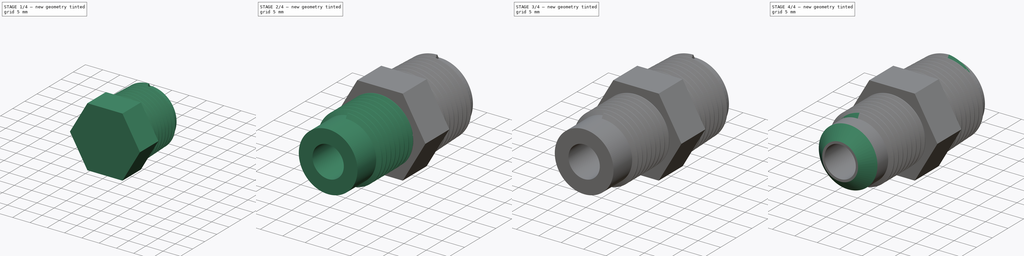
[diagram: build sequence overview — one tinted view per stage of 4, left to right]
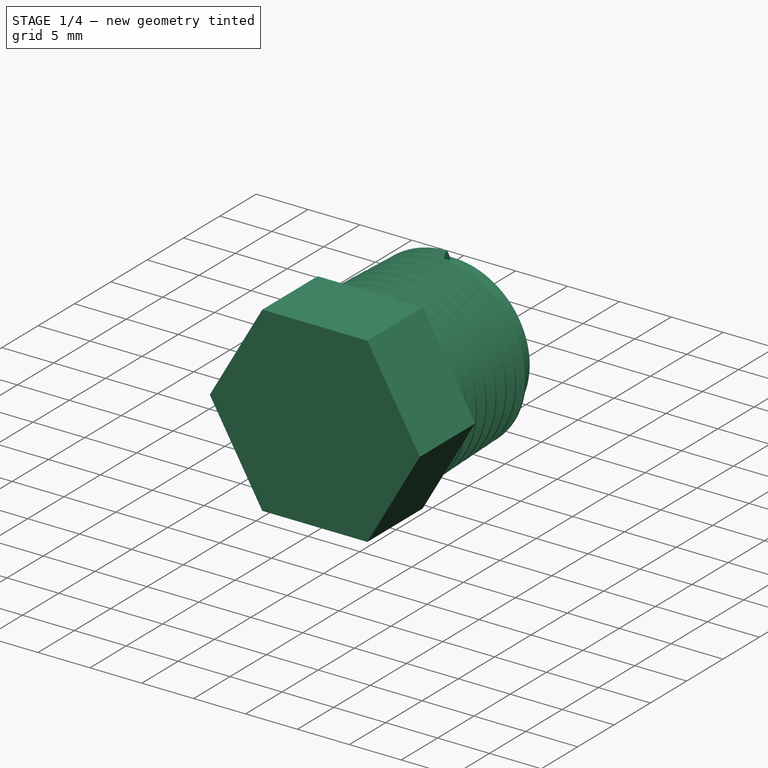
[diagram: stage 1 of 4 — iso view after this stage's code; geometry added in this stage tinted green]
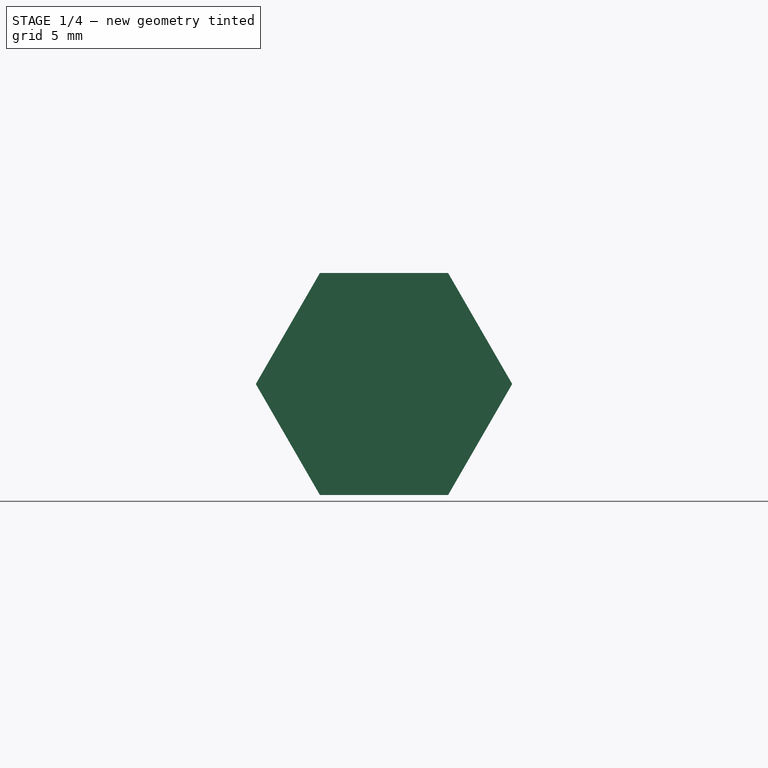
[diagram: stage 1 of 4 — front view after this stage's code; geometry added in this stage tinted green]
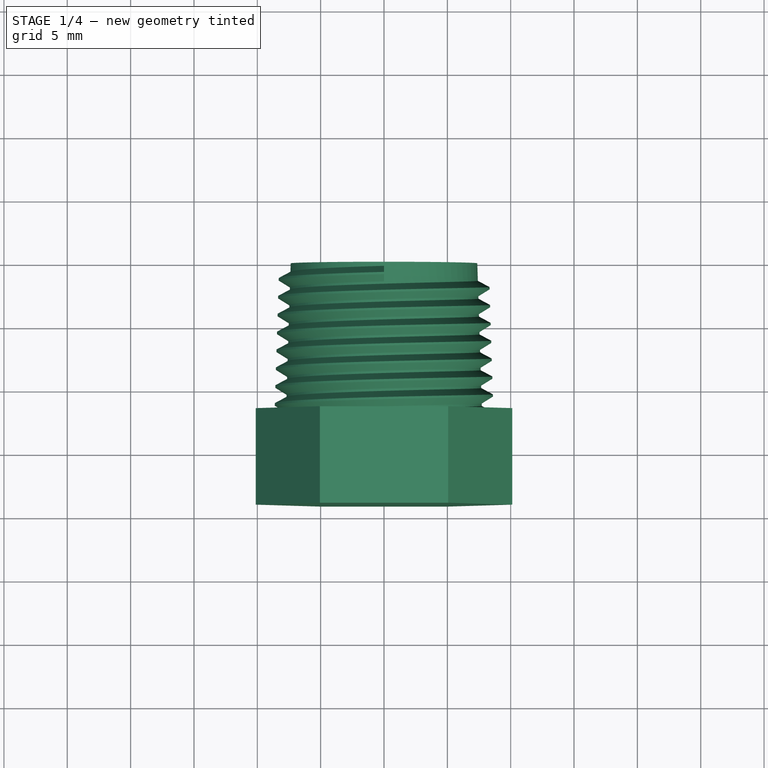
[diagram: stage 1 of 4 — top view after this stage's code; geometry added in this stage tinted green]
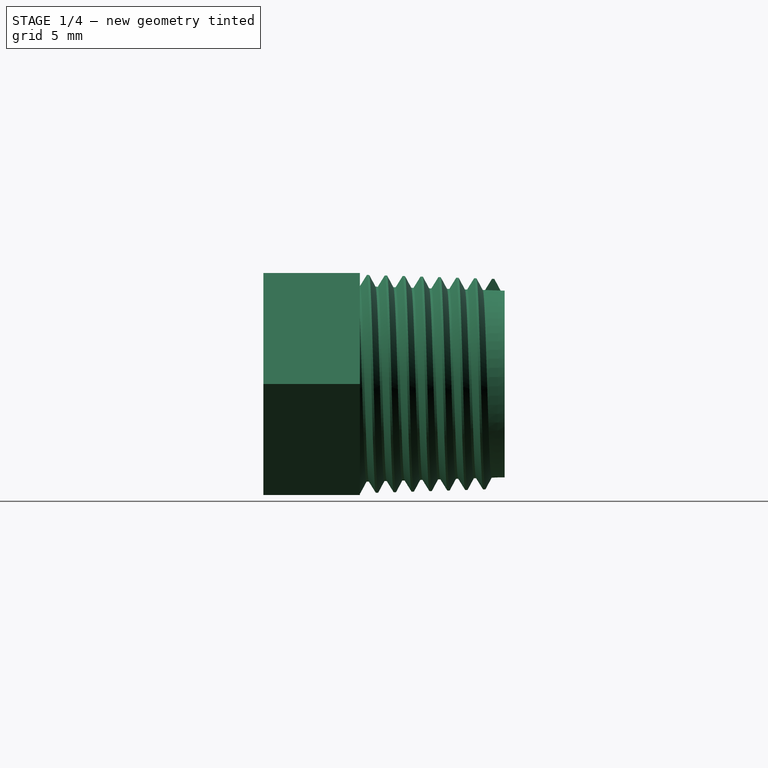
[diagram: stage 1 of 4 — right view after this stage's code; geometry added in this stage tinted green]
FCSTD DOCUMENT  (FreeCAD 0.20RUnknown)
Label: flared-fittings
License: All rights reserved
LicenseURL: http://en.wikipedia.org/wiki/All_rights_reserved
objects: Sketcher::SketchObject×7, PartDesign::AdditiveHelix×4, PartDesign::Pad×2, PartDesign::Pocket×2, PartDesign::Chamfer×2, PartDesign::Revolution×1, PartDesign::Body×1, App::Part×1
note: 30 computed .brp shape members not serialized (recipe doc carries the construction recipe); baked Part::Feature solids carry a one-line shape summary decoded from their .brp

FEATURE [Sketcher::SketchObject] Sketch081
  FullyConstrained = true
  MapMode = 5
  Placement = pos=(0,0,0) rot=(0.57735,0.57735,0.57735;2.0944rad)
  Support = -> [YZ_Plane035]
  sketch-geometry (4):
    g0: LineSegment StartX=0 StartY=7.366 StartZ=0 EndX=-11.43 EndY=7.72319 EndZ=0
    g1: LineSegment StartX=0 StartY=7.366 StartZ=0 EndX=0 EndY=0 EndZ=0
    g2: LineSegment StartX=0 StartY=0 StartZ=0 EndX=-11.43 EndY=0 EndZ=0
    g3: LineSegment StartX=-11.43 StartY=0 StartZ=0 EndX=-11.43 EndY=7.72319 EndZ=0
  constraints (12):
    c: PointOnObject(g0,g-2)
    c: Coincident(g1,g0)
    c: PointOnObject(g1,g-2)
    c: Coincident(g2,g1)
    c: Horizontal(g2)
    c: Coincident(g3,g2)
    c: Coincident(g3,g0)
    c: Vertical(g3)
    c: DistanceY(g-1,g1) = 0
    c: DistanceY(g-1,g0) = 7.366
    c: Angle(g0,g-1) = 0.0312396
    c: DistanceX(g2,g2) = 11.43
FEATURE [PartDesign::Revolution] Revolution003
  Angle = 360
  Axis = (3e-16,1,-2e-16)
  Base = (0,0,0)
  Placement = pos=(0,0,0) rot=(0.57735,0.57735,0.57735;2.0944rad)
  Profile = -> Sketch081
  ReferenceAxis = -> Sketch081 [H_Axis]
FEATURE [Sketcher::SketchObject] Sketch082
  FullyConstrained = true
  MapMode = 5
  Placement = pos=(0,0,0) rot=(0.57735,0.57735,0.57735;2.0944rad)
  Support = -> [YZ_Plane035]
  sketch-geometry (4):
    g0: LineSegment StartX=-1.55162 StartY=7.40431 StartZ=0 EndX=-0.994084 EndY=8.30388 EndZ=0
    g1: LineSegment StartX=-0.994084 StartY=8.30388 StartZ=0 EndX=-0.817781 EndY=8.29837 EndZ=0
    g2: LineSegment StartX=-0.817781 StartY=8.29837 StartZ=0 EndX=-0.3175 EndY=7.36575 EndZ=0
    g3: LineSegment StartX=-0.3175 StartY=7.36575 StartZ=0 EndX=-1.55162 EndY=7.40431 EndZ=0
  constraints (12):
    c: Coincident(g1,g0)
    c: Coincident(g2,g1)
    c: Coincident(g3,g2)
    c: Coincident(g3,g0)
    c: Angle(g0,g2) = 1.0472
    c: Parallel(g3,g1)
    c: Angle(g3,g-1) = 0.0312396
    c: Equal(g0,g2)
    c: Distance(g1) = 0.176389
    c: DistanceY(g-1,g2) = 7.36575
    c: Distance(g0,g1) = 0.916545
    c: DistanceX(g2,g-1) = 0.3175
FEATURE [PartDesign::AdditiveHelix] AdditiveHelix003
  Angle = 1.7899
  Axis = (3e-16,1,-2e-16)
  Base = (0,0,0)
  BaseFeature = -> Revolution003
  Growth = 0.0440969
  HasBeenEdited = true
  Height = 12.7
  LeftHanded = false
  Mode = 0
  Outside = false
  Pitch = 1.41111
  Placement = pos=(0,0,0) rot=(0.57735,0.57735,0.57735;2.0944rad)
  Profile = -> Sketch082
  ReferenceAxis = -> Sketch082 [H_Axis]
  Reversed = true
  Turns = 9.00001
FEATURE [Sketcher::SketchObject] Sketch083
  AttachmentOffset = pos=(0,0,11.43) rot=(0,0,1;0rad)
  FullyConstrained = true
  MapMode = 5
  Placement = pos=(0,-11.43,-2.5e-15) rot=(1,0,0;1.5708rad)
  Support = -> [XZ_Plane035]
  sketch-geometry (7):
    g0: LineSegment StartX=10.1186 StartY=0 StartZ=0 EndX=5.05932 EndY=8.763 EndZ=0
    g1: LineSegment StartX=5.05932 StartY=8.763 StartZ=0 EndX=-5.05932 EndY=8.763 EndZ=0
    g2: LineSegment StartX=-5.05932 StartY=8.763 StartZ=0 EndX=-10.1186 EndY=1.3145e-12 EndZ=0
    g3: LineSegment StartX=-10.1186 StartY=1.3145e-12 StartZ=0 EndX=-5.05932 EndY=-8.763 EndZ=0
    g4: LineSegment StartX=-5.05932 StartY=-8.763 StartZ=0 EndX=5.05932 EndY=-8.763 EndZ=0
    g5: LineSegment StartX=5.05932 StartY=-8.763 StartZ=0 EndX=10.1186 EndY=0 EndZ=0
    g6: Circle CenterX=0 CenterY=0 CenterZ=0 NormalX=0 NormalY=0 NormalZ=1 AngleXU=0 Radius=10.1186
  constraints (16):
    c: Coincident(g0,g1)
    c: Coincident(g1,g2)
    c: Coincident(g2,g3)
    c: Coincident(g3,g4)
    c: Coincident(g4,g5)
    c: Coincident(g5,g0)
    c: Equal(g0, g1-g5) x5
    c: PointOnObject(g0,g6)
    c: PointOnObject(g1,g6)
    c: PointOnObject(g2,g6)
    c: PointOnObject(g3,g6)
    c: PointOnObject(g4,g6)
    c: PointOnObject(g5,g6)
    c: Coincident(g6,g-1)
    c: PointOnObject(g5,g-1)
    c: Distance(g3,g0) = 17.526
FEATURE [PartDesign::Pad] Pad027
  BaseFeature = -> AdditiveHelix003
  Direction = (0,-1,-2e-16)
  Length = 7.62
  Length2 = 10
  Placement = pos=(0,0,0) rot=(0.57735,0.57735,0.57735;2.0944rad)
  Profile = -> Sketch083
  ReferenceAxis = -> Sketch083 [N_Axis]
  Type = 0
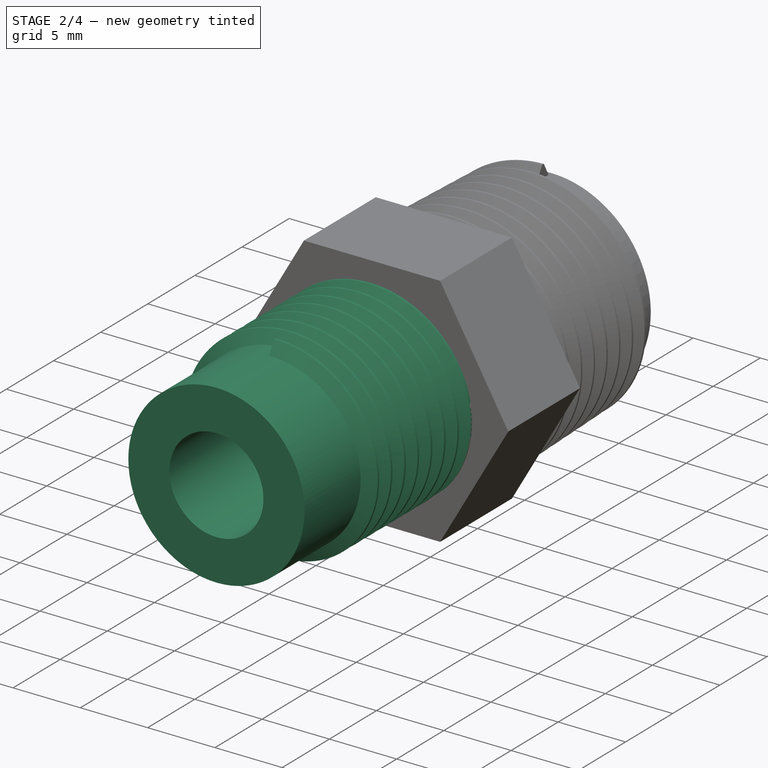
[diagram: stage 2 of 4 — iso view after this stage's code; geometry added in this stage tinted green]
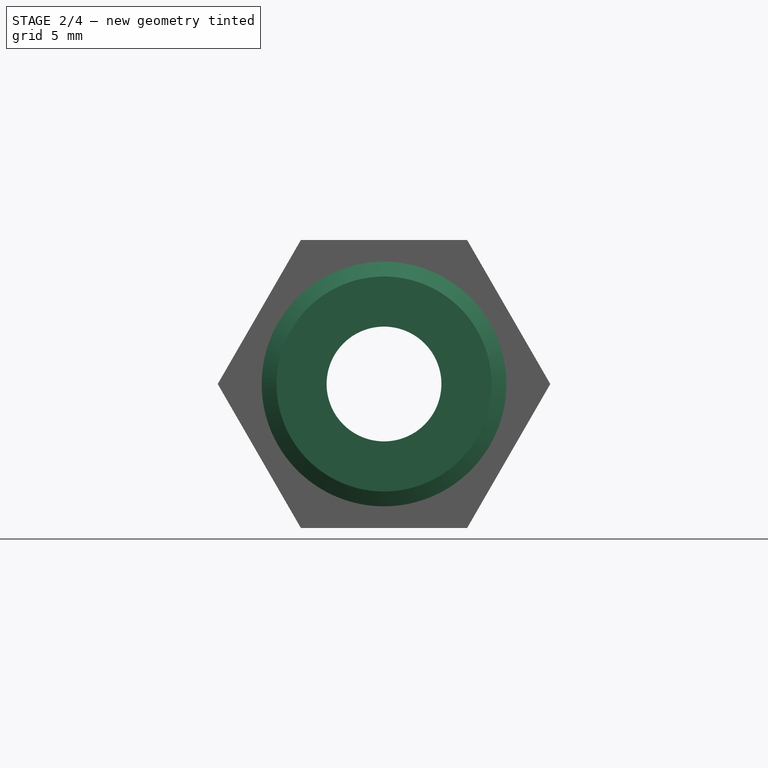
[diagram: stage 2 of 4 — front view after this stage's code; geometry added in this stage tinted green]
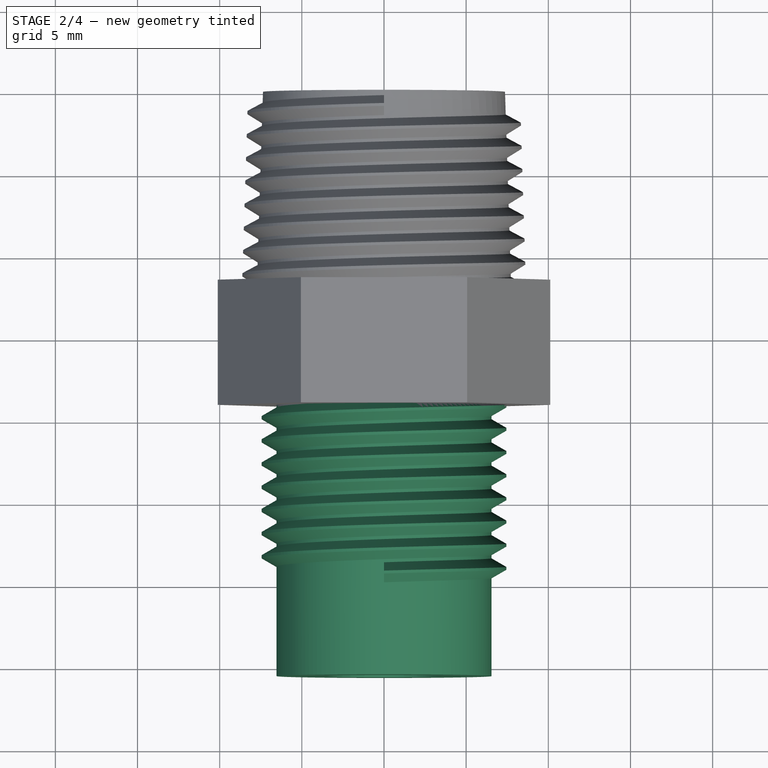
[diagram: stage 2 of 4 — top view after this stage's code; geometry added in this stage tinted green]
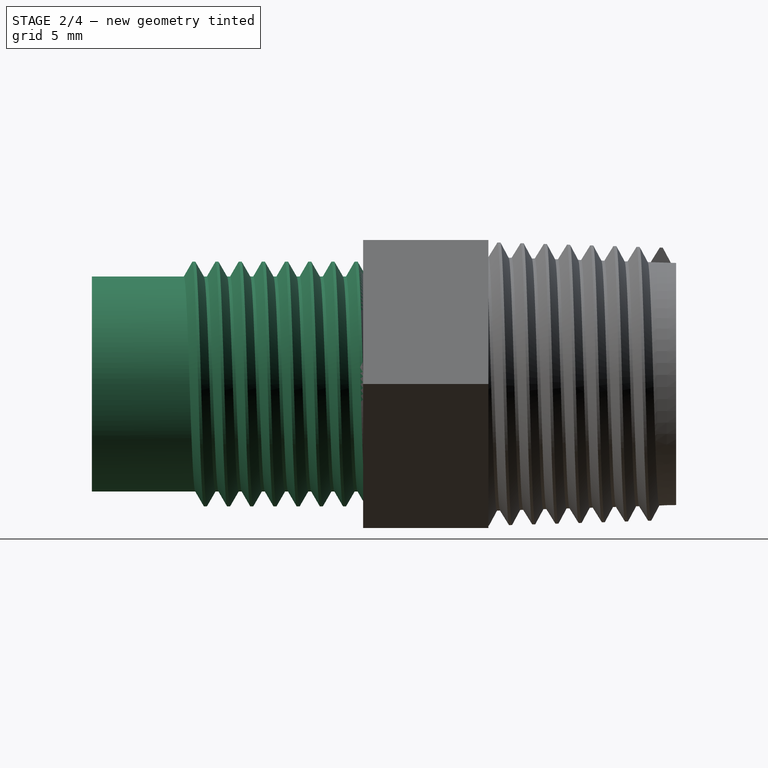
[diagram: stage 2 of 4 — right view after this stage's code; geometry added in this stage tinted green]
FEATURE [Sketcher::SketchObject] Sketch084
  AttachmentOffset = pos=(0,0,19.05) rot=(0,0,1;0rad)
  FullyConstrained = true
  MapMode = 5
  Placement = pos=(0,-19.05,-4.2e-15) rot=(1,0,0;1.5708rad)
  Support = -> [XZ_Plane035]
  sketch-geometry (1):
    g0: Circle CenterX=0 CenterY=0 CenterZ=0 NormalX=0 NormalY=0 NormalZ=1 AngleXU=0 Radius=6.5405
  constraints (2):
    c: Coincident(g0,g-1)
    c: Diameter(g0) = 13.081
FEATURE [PartDesign::Pad] Pad028
  BaseFeature = -> Pad027
  Direction = (0,-1,-2e-16)
  Length = 16.51
  Length2 = 10
  Placement = pos=(0,0,0) rot=(0.57735,0.57735,0.57735;2.0944rad)
  Profile = -> Sketch084
  ReferenceAxis = -> Sketch084 [N_Axis]
  Type = 0
FEATURE [Sketcher::SketchObject] Sketch085
  FullyConstrained = true
  MapMode = 5
  Placement = pos=(0,0,0) rot=(0.57735,0.57735,0.57735;2.0944rad)
  Support = -> [YZ_Plane035]
  sketch-geometry (4):
    g0: LineSegment StartX=-29.972 StartY=6.5278 StartZ=0 EndX=-29.4428 EndY=7.44435 EndZ=0
    g1: LineSegment StartX=-29.4428 StartY=7.44435 StartZ=0 EndX=-29.2664 EndY=7.44435 EndZ=0
    g2: LineSegment StartX=-29.2664 StartY=7.44435 StartZ=0 EndX=-28.7373 EndY=6.5278 EndZ=0
    g3: LineSegment StartX=-28.7373 StartY=6.5278 StartZ=0 EndX=-29.972 EndY=6.5278 EndZ=0
  constraints (12):
    c: Coincident(g1,g0)
    c: Horizontal(g1)
    c: Coincident(g2,g1)
    c: Coincident(g3,g2)
    c: Coincident(g3,g0)
    c: Horizontal(g3)
    c: Equal(g2,g0)
    c: Angle(g0,g2) = 1.0472
    c: DistanceX(g1,g1) = 0.176389
    c: DistanceY(g0,g0) = 0.916545
    c: DistanceX(g0,g-1) = 29.972
    c: DistanceY(g-1,g2) = 6.5278
FEATURE [PartDesign::AdditiveHelix] AdditiveHelix004
  Angle = 0
  Axis = (3e-16,1,-2e-16)
  Base = (0,0,0)
  BaseFeature = -> Pad028
  Growth = 0
  HasBeenEdited = true
  Height = 12.7
  LeftHanded = false
  Mode = 0
  Outside = false
  Pitch = 1.41111
  Placement = pos=(0,0,0) rot=(0.57735,0.57735,0.57735;2.0944rad)
  Profile = -> Sketch085
  ReferenceAxis = -> Sketch085 [H_Axis]
  Turns = 9.00001
FEATURE [Sketcher::SketchObject] Sketch086
  FullyConstrained = true
  MapMode = 5
  Placement = pos=(0,-35.56,0) rot=(0.57735,0.57735,-0.57735;2.0944rad)
  Support = -> [AdditiveHelix004]
  sketch-geometry (1):
    g0: Circle CenterX=0 CenterY=0 CenterZ=0 NormalX=0 NormalY=0 NormalZ=1 AngleXU=0 Radius=3.4925
  constraints (2):
    c: Coincident(g0,g-1)
    c: Diameter(g0) = 6.985
FEATURE [PartDesign::Pocket] Pocket015
  BaseFeature = -> AdditiveHelix004
  Direction = (1e-16,1,-6e-16)
  Length = 5
  Length2 = 5
  Placement = pos=(0,0,0) rot=(0.57735,0.57735,0.57735;2.0944rad)
  Profile = -> Sketch086
  ReferenceAxis = -> Sketch086 [N_Axis]
  Type = 1
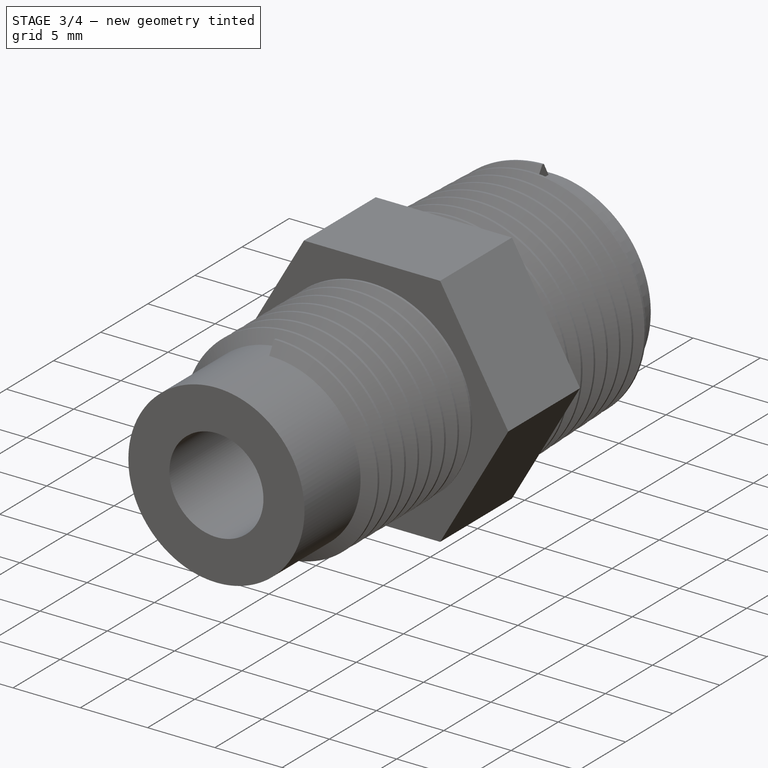
[diagram: stage 3 of 4 — iso view after this stage's code; geometry added in this stage tinted green]
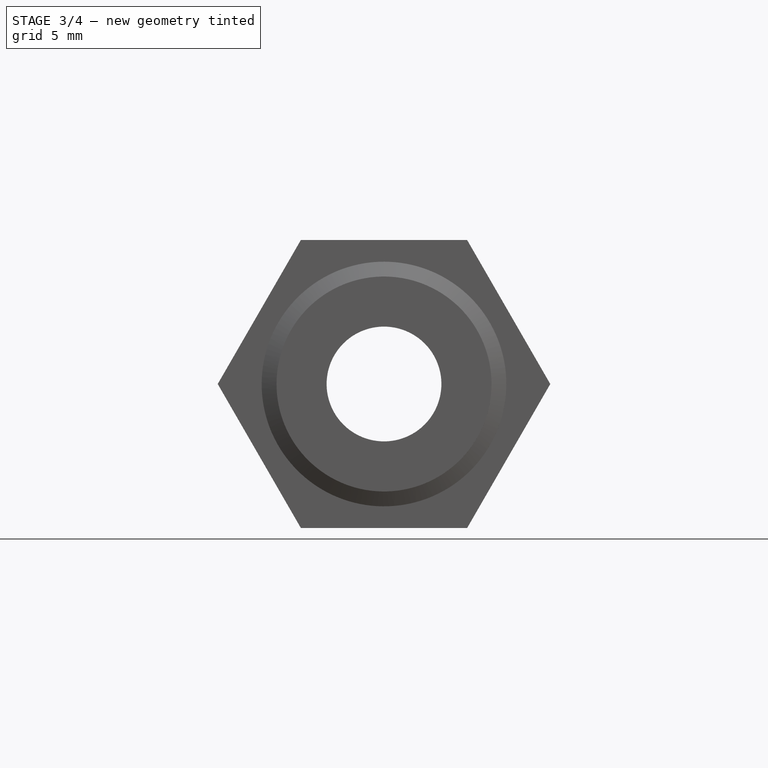
[diagram: stage 3 of 4 — front view after this stage's code; geometry added in this stage tinted green]
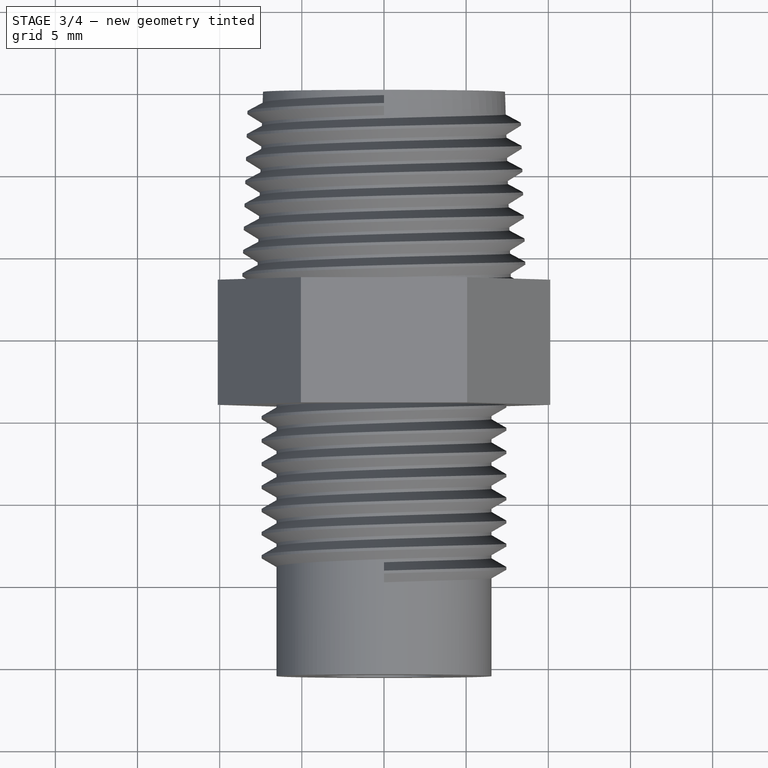
[diagram: stage 3 of 4 — top view after this stage's code; geometry added in this stage tinted green]
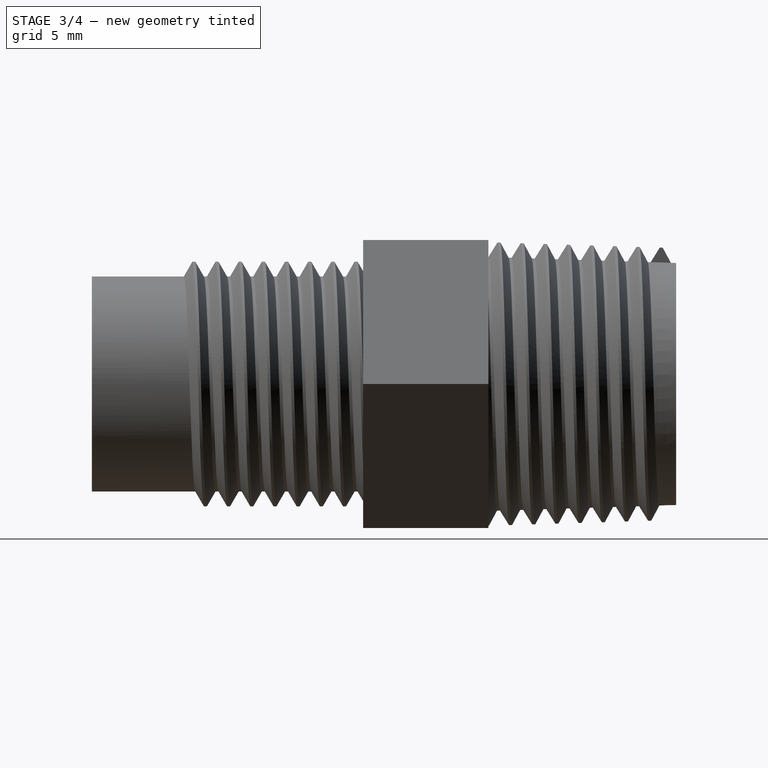
[diagram: stage 3 of 4 — right view after this stage's code; geometry added in this stage tinted green]
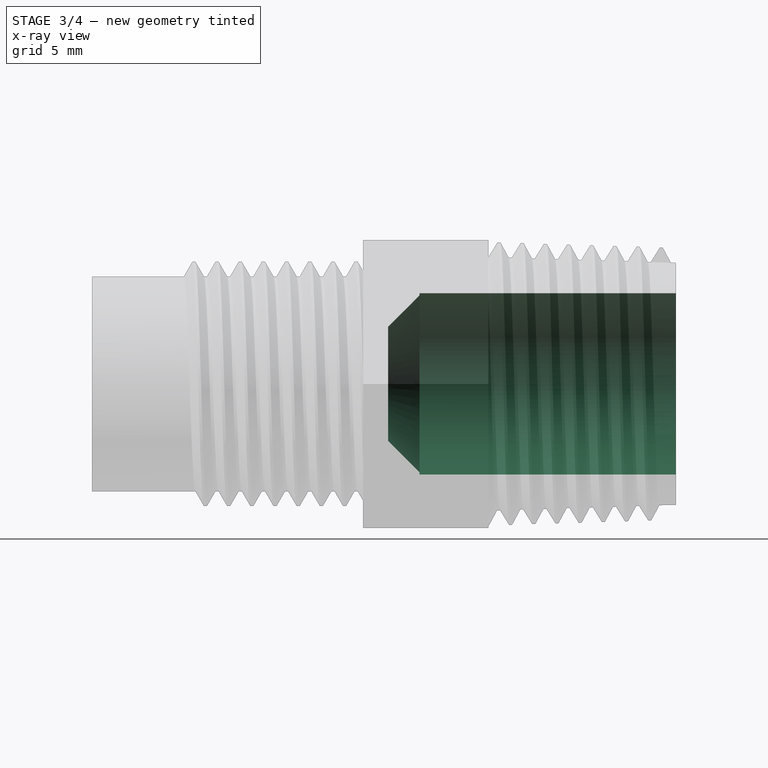
[diagram: stage 3 of 4 — x-ray composite at the right view; earlier geometry ghosted, this stage's added geometry solid]
FEATURE [Sketcher::SketchObject] Sketch087
  FullyConstrained = true
  MapMode = 5
  Placement = pos=(0,-1.6e-15,0) rot=(0.57735,0.57735,0.57735;4.18879rad)
  Support = -> [Pocket015]
  sketch-geometry (1):
    g0: Circle CenterX=0 CenterY=0 CenterZ=0 NormalX=0 NormalY=0 NormalZ=1 AngleXU=0 Radius=5.5245
  constraints (2):
    c: Coincident(g0,g-1)
    c: Diameter(g0) = 11.049
FEATURE [PartDesign::Pocket] Pocket016
  BaseFeature = -> Pocket015
  Direction = (-3e-16,-1,2.1e-15)
  Length = 15.621
  Length2 = 5
  Placement = pos=(0,0,0) rot=(0.57735,0.57735,0.57735;2.0944rad)
  Profile = -> Sketch087
  ReferenceAxis = -> Sketch087 [N_Axis]
  Type = 0
FEATURE [PartDesign::Chamfer] Chamfer001
  Angle = 45
  Base = -> Pocket016 [Edge33]
  BaseFeature = -> Pocket016
  ChamferType = 0
  FlipDirection = false
  Placement = pos=(0,0,0) rot=(0.57735,0.57735,0.57735;2.0944rad)
  Size = 1.905
  Size2 = 1
  SupportTransform = false
  UseAllEdges = false
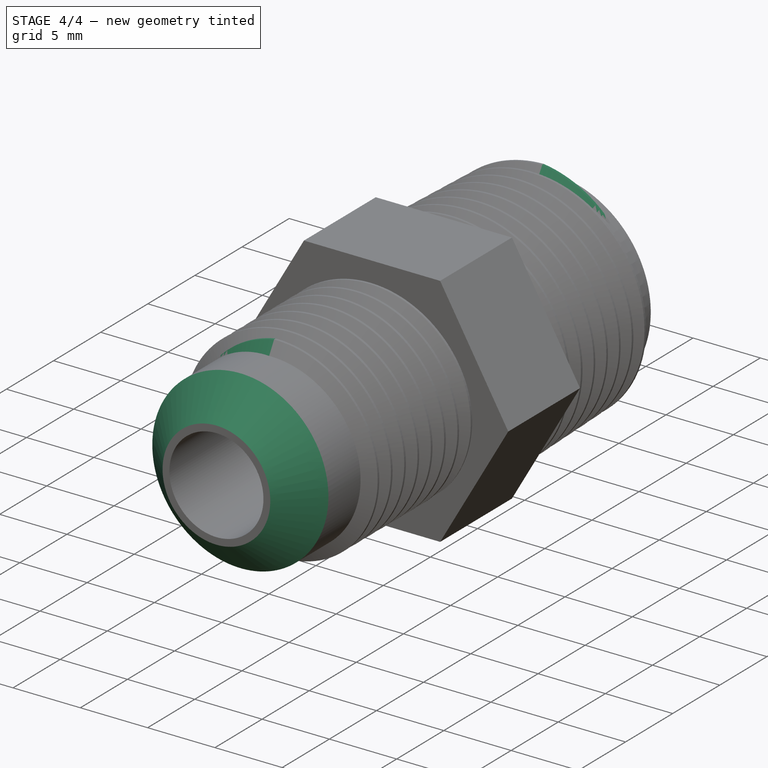
[diagram: stage 4 of 4 — iso view after this stage's code; geometry added in this stage tinted green]
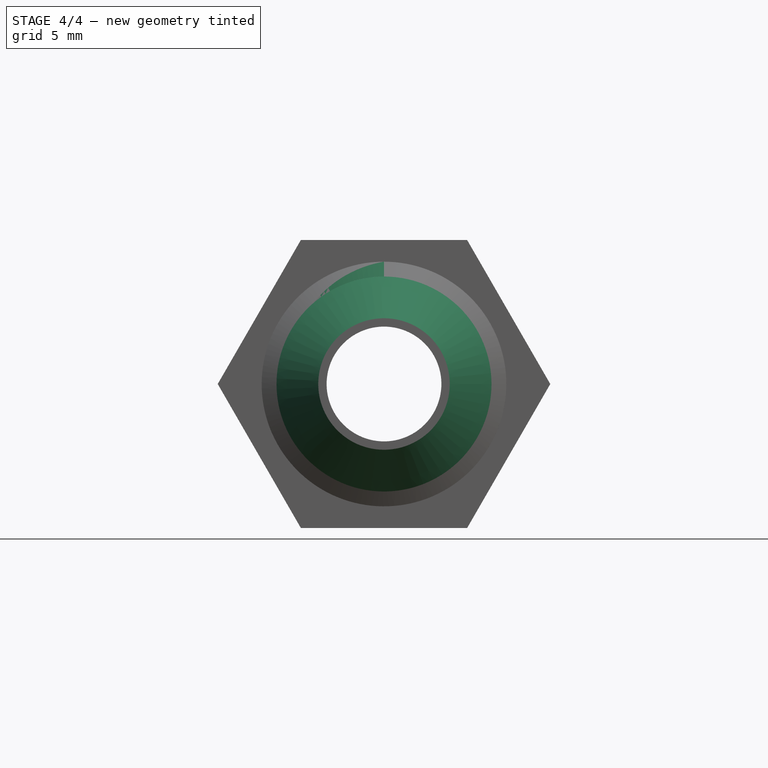
[diagram: stage 4 of 4 — front view after this stage's code; geometry added in this stage tinted green]
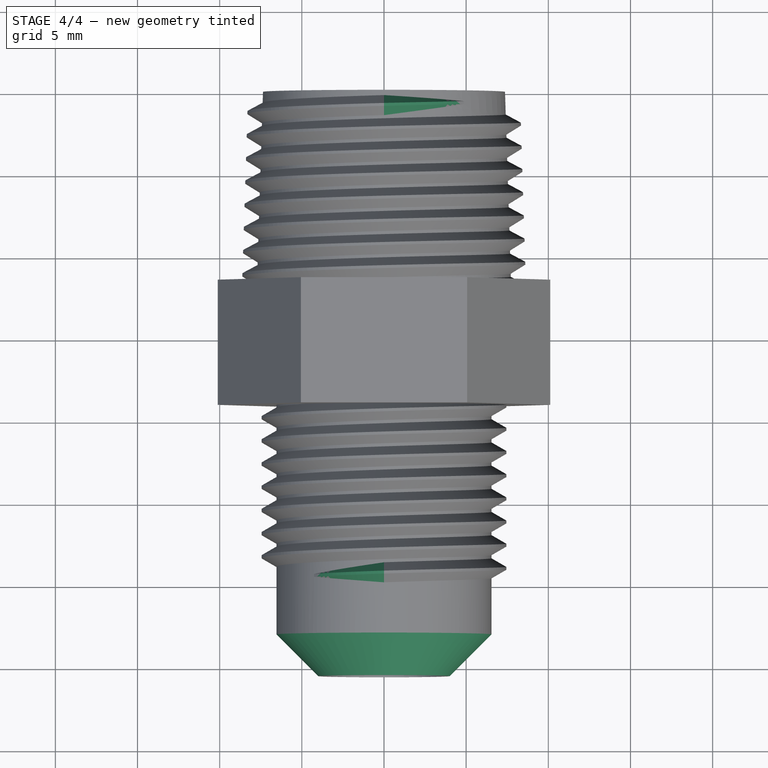
[diagram: stage 4 of 4 — top view after this stage's code; geometry added in this stage tinted green]
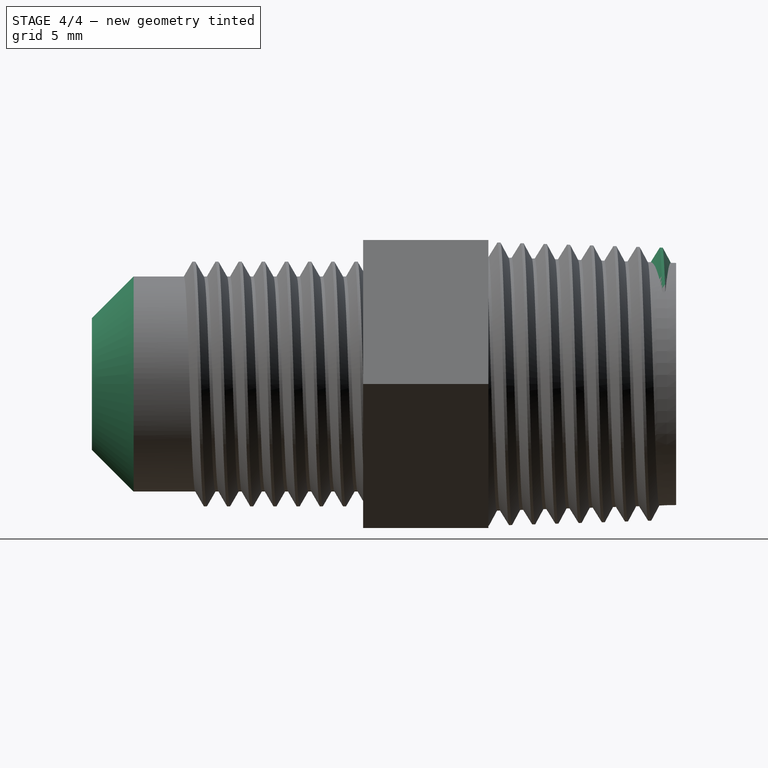
[diagram: stage 4 of 4 — right view after this stage's code; geometry added in this stage tinted green]
FEATURE [PartDesign::Chamfer] Chamfer002
  Angle = 45
  Base = -> Chamfer001 [Edge10]
  BaseFeature = -> Chamfer001
  ChamferType = 0
  FlipDirection = false
  Placement = pos=(0,0,0) rot=(0.57735,0.57735,0.57735;2.0944rad)
  Size = 2.54
  Size2 = 1
  SupportTransform = false
  UseAllEdges = false
FEATURE [PartDesign::AdditiveHelix] AdditiveHelix005
  Angle = -80
  Axis = (1e-16,1,-1e-16)
  Base = (0,0,0)
  BaseFeature = -> Chamfer002
  Growth = -8.0028
  HasBeenEdited = true
  Height = 0.254
  LeftHanded = false
  Mode = 0
  Outside = false
  Pitch = 1.41111
  Placement = pos=(0,0,0) rot=(0.57735,0.57735,0.57735;2.0944rad)
  Profile = -> Chamfer002 [Face9]
  ReferenceAxis = -> Y_Axis035
  Reversed = true
  Turns = 0.18
FEATURE [PartDesign::AdditiveHelix] AdditiveHelix006
  Angle = -80
  Axis = (1e-16,1,-1e-16)
  Base = (0,0,0)
  BaseFeature = -> AdditiveHelix005
  Growth = -8.0028
  HasBeenEdited = true
  Height = 0.254
  LeftHanded = false
  Mode = 0
  Outside = false
  Pitch = 1.41111
  Placement = pos=(0,0,0) rot=(0.57735,0.57735,0.57735;2.0944rad)
  Profile = -> AdditiveHelix005 [Face34]
  ReferenceAxis = -> Y_Axis035
  Turns = 0.18
FEATURE [PartDesign::Body] Body018  label="body-1/4npt-3/8flare"
  Group = -> [Sketch081,Revolution003,Sketch082,AdditiveHelix003,Sketch083,Pad027,Sketch084,Pad028,Sketch085,AdditiveHelix004,Sketch086,Pocket015,Sketch087,Pocket016,Chamfer001,Chamfer002,AdditiveHelix005,AdditiveHelix006]
  Origin = -> Origin035
  Tip = -> AdditiveHelix006
FEATURE [App::Part] Part003  label="brass-1/4npt-3/8flare"
  Group = -> [Body018]
  Origin = -> Origin034
  Placement = pos=(259.08,0,0) rot=(0,0,1;1.5708rad)
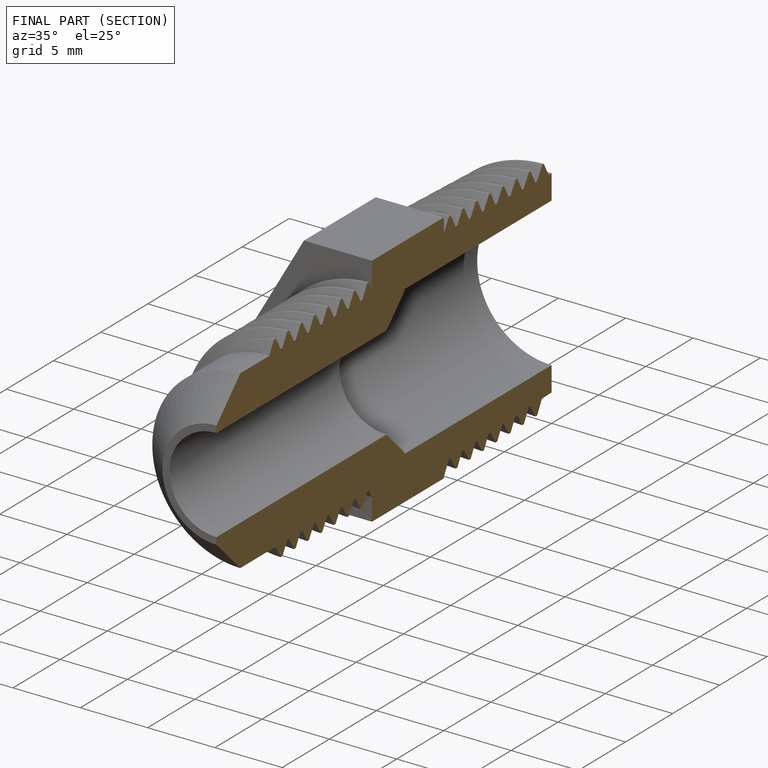
[diagram: finished part — half-section view (interior)]
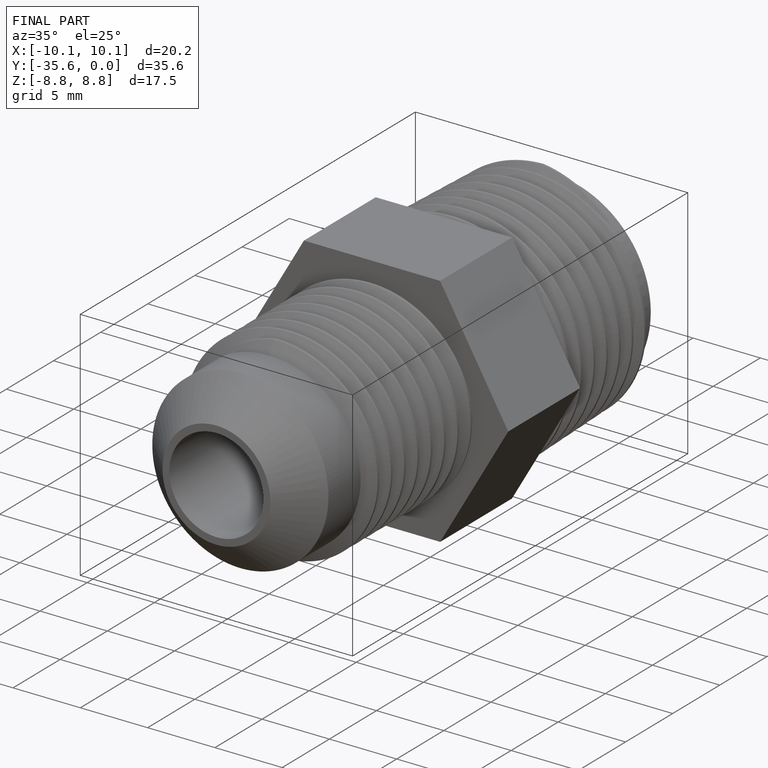
[diagram: finished part — iso view with bounding-box wireframe]
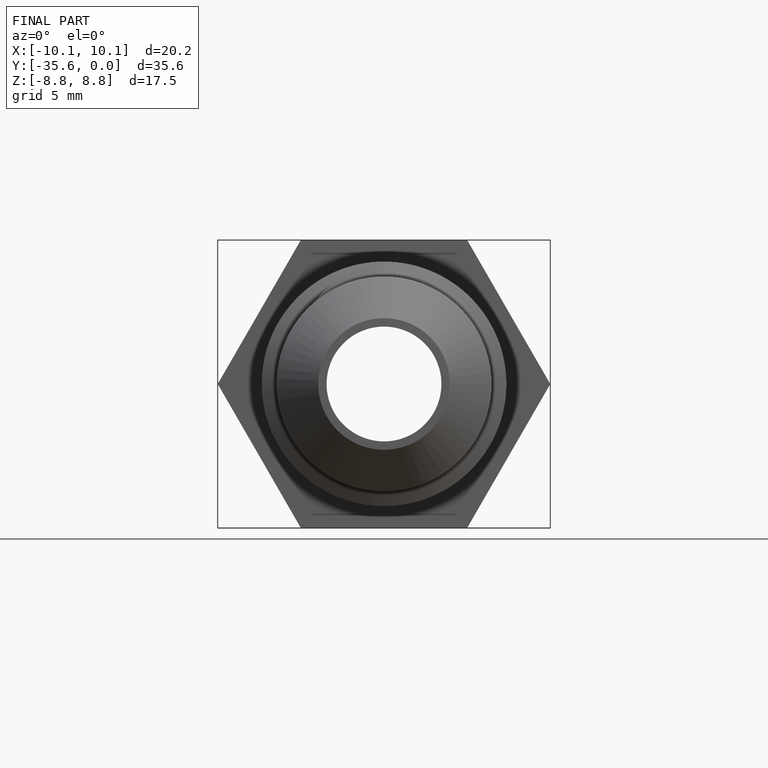
[diagram: finished part — front view with bounding-box wireframe]
